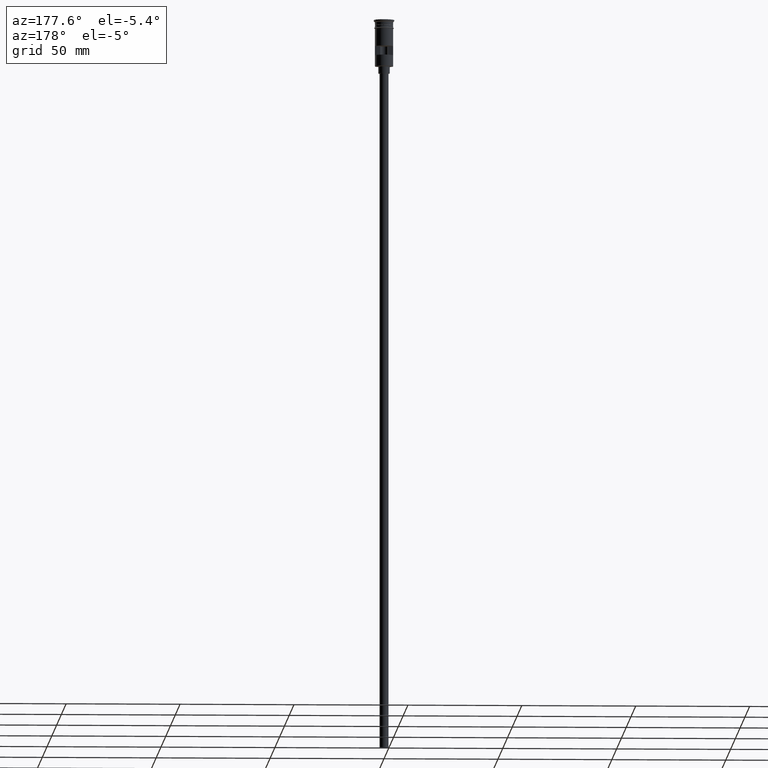
[diagram: clean part render]
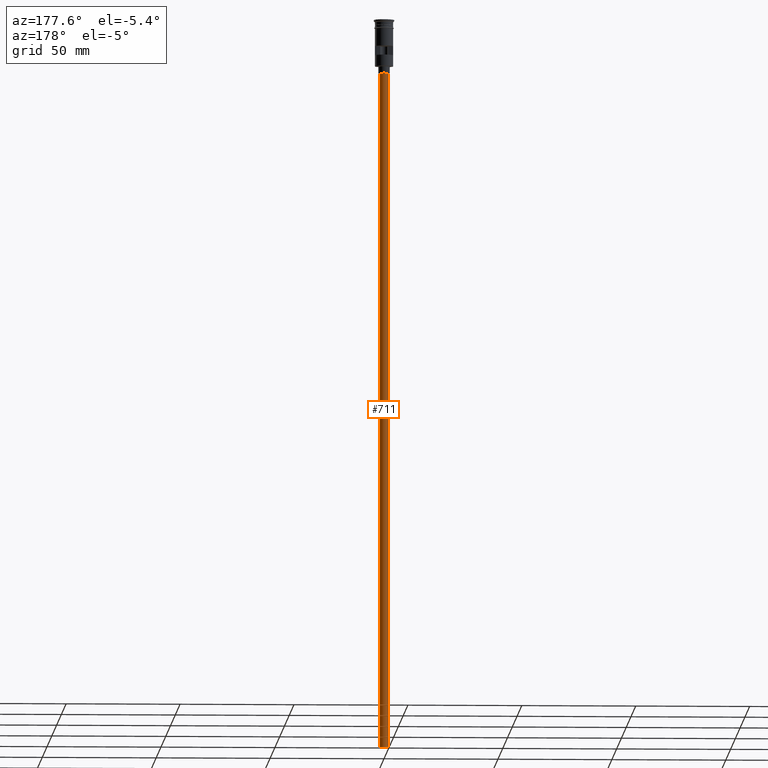
[diagram: same view with one face highlighted and labeled with its STEP entity id]
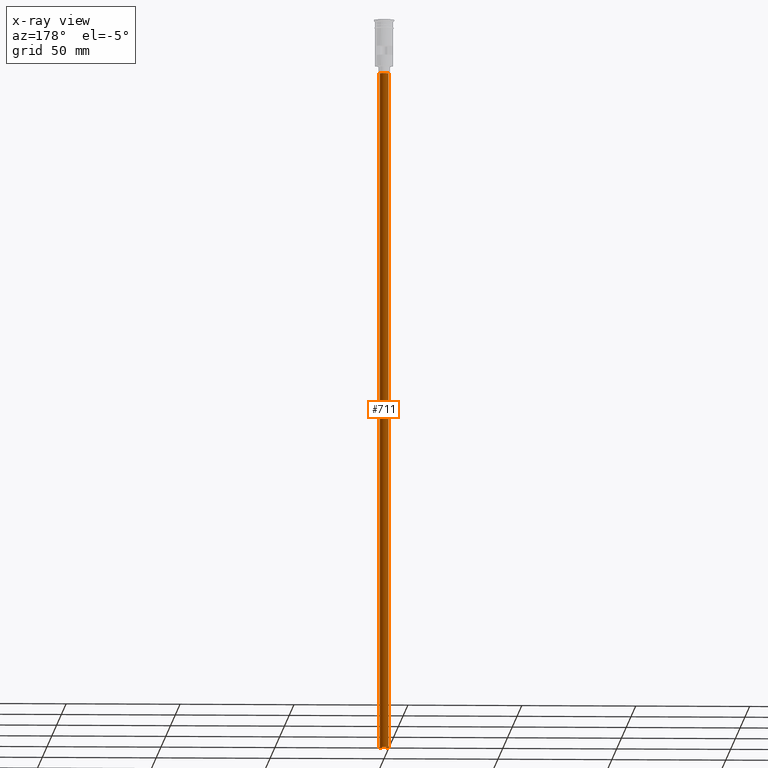
[diagram: x-ray of the same camera — body ghosted, the highlighted face saturated]
A machine part, auxiliary view. The second image highlights one B-rep face of the part: STEP entity #711.
The next image is the same camera in x-ray: the body ghosted, the highlighted face saturated — about 0% of this face is hidden behind the body in this view.
In plain terms, the highlighted cylindrical surface (edge-blend (fillet) strip) has radius 2 mm, axis along (-0, -0, 1).
Its self-contained STEP definition (entity closure, byte-faithful):
#34 = AXIS2_PLACEMENT_3D ( 'NONE', #1549, #1068, #67 ) ;
#35 = CARTESIAN_POINT ( 'NONE',  ( -2.000000000000000000, 2.449293598294706414E-16, -23.49999999999999645 ) ) ;
#49 = CARTESIAN_POINT ( 'NONE',  ( 2.000000000000000000, 0.000000000000000000, -320.5000000000000000 ) ) ;
#67 = DIRECTION ( 'NONE',  ( -1.000000000000000000, 0.000000000000000000, 0.000000000000000000 ) ) ;
#155 = EDGE_CURVE ( 'NONE', #1588, #822, #325, .T. ) ;
#211 = LINE ( 'NONE', #700, #845 ) ;
#272 = AXIS2_PLACEMENT_3D ( 'NONE', #1593, #482, #1472 ) ;
#273 = EDGE_CURVE ( 'NONE', #1405, #822, #561, .T. ) ;
#325 = CIRCLE ( 'NONE', #34, 2.000000000000000000 ) ;
#334 = CYLINDRICAL_SURFACE ( 'NONE', #272, 2.000000000000000000 ) ;
#347 = ORIENTED_EDGE ( 'NONE', *, *, #1496, .T. ) ;
#383 = EDGE_CURVE ( 'NONE', #704, #1405, #1235, .T. ) ;
#469 = CARTESIAN_POINT ( 'NONE',  ( 0.000000000000000000, 0.000000000000000000, -320.5000000000000000 ) ) ;
#482 = DIRECTION ( 'NONE',  ( -0.000000000000000000, -0.000000000000000000, 1.000000000000000000 ) ) ;
#561 = LINE ( 'NONE', #1059, #582 ) ;
#582 = VECTOR ( 'NONE', #651, 1000.000000000000000 ) ;
#603 = CARTESIAN_POINT ( 'NONE',  ( -2.000000000000000000, 2.449293598294706414E-16, -320.5000000000000000 ) ) ;
#651 = DIRECTION ( 'NONE',  ( -0.000000000000000000, -0.000000000000000000, 1.000000000000000000 ) ) ;
#700 = CARTESIAN_POINT ( 'NONE',  ( -2.000000000000000000, 2.449293598294706414E-16, -320.5000000000000000 ) ) ;
#704 = VERTEX_POINT ( 'NONE', #603 ) ;
#711 = ADVANCED_FACE ( 'NONE', ( #856 ), #334, .T. ) ;
#770 = ORIENTED_EDGE ( 'NONE', *, *, #273, .F. ) ;
#802 = EDGE_LOOP ( 'NONE', ( #1350, #347, #1252, #770 ) ) ;
#822 = VERTEX_POINT ( 'NONE', #1359 ) ;
#845 = VECTOR ( 'NONE', #1218, 1000.000000000000000 ) ;
#856 = FACE_OUTER_BOUND ( 'NONE', #802, .T. ) ;
#990 = DIRECTION ( 'NONE',  ( 0.000000000000000000, 0.000000000000000000, -1.000000000000000000 ) ) ;
#1059 = CARTESIAN_POINT ( 'NONE',  ( 2.000000000000000000, 0.000000000000000000, -320.5000000000000000 ) ) ;
#1068 = DIRECTION ( 'NONE',  ( 0.000000000000000000, 0.000000000000000000, -1.000000000000000000 ) ) ;
#1218 = DIRECTION ( 'NONE',  ( -0.000000000000000000, -0.000000000000000000, 1.000000000000000000 ) ) ;
#1235 = CIRCLE ( 'NONE', #1382, 2.000000000000000000 ) ;
#1252 = ORIENTED_EDGE ( 'NONE', *, *, #155, .T. ) ;
#1350 = ORIENTED_EDGE ( 'NONE', *, *, #383, .F. ) ;
#1359 = CARTESIAN_POINT ( 'NONE',  ( 2.000000000000000000, 0.000000000000000000, -23.49999999999999645 ) ) ;
#1382 = AXIS2_PLACEMENT_3D ( 'NONE', #469, #990, #1481 ) ;
#1405 = VERTEX_POINT ( 'NONE', #49 ) ;
#1472 = DIRECTION ( 'NONE',  ( 1.000000000000000000, 0.000000000000000000, 0.000000000000000000 ) ) ;
#1481 = DIRECTION ( 'NONE',  ( -1.000000000000000000, 0.000000000000000000, 0.000000000000000000 ) ) ;
#1496 = EDGE_CURVE ( 'NONE', #704, #1588, #211, .T. ) ;
#1549 = CARTESIAN_POINT ( 'NONE',  ( 0.000000000000000000, 0.000000000000000000, -23.49999999999999645 ) ) ;
#1588 = VERTEX_POINT ( 'NONE', #35 ) ;
#1593 = CARTESIAN_POINT ( 'NONE',  ( 0.000000000000000000, 0.000000000000000000, -320.5000000000000000 ) ) ;